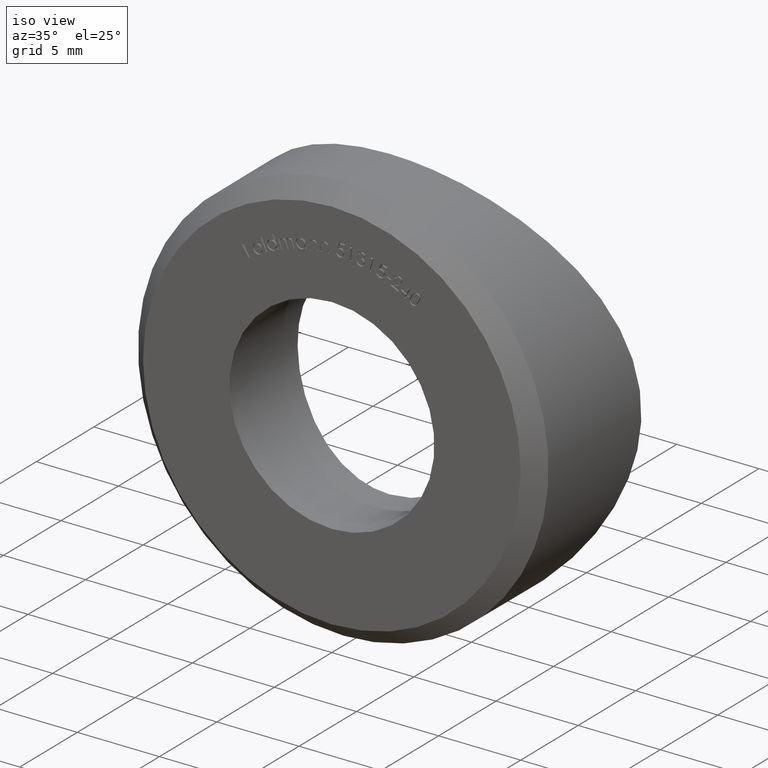
[diagram: clean part render]
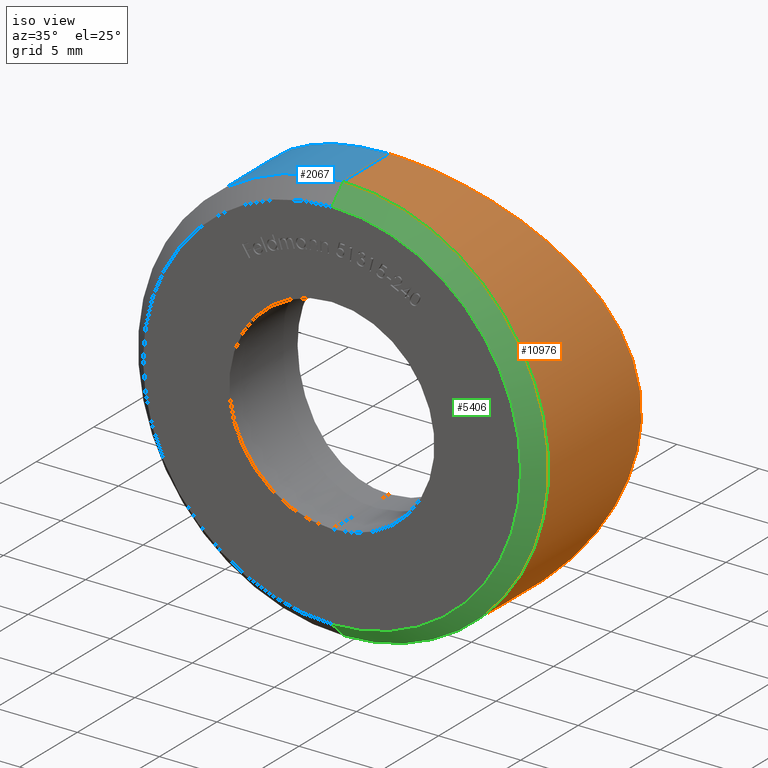
[diagram: same view with three faces highlighted in distinct colors, each labeled with its STEP entity id]
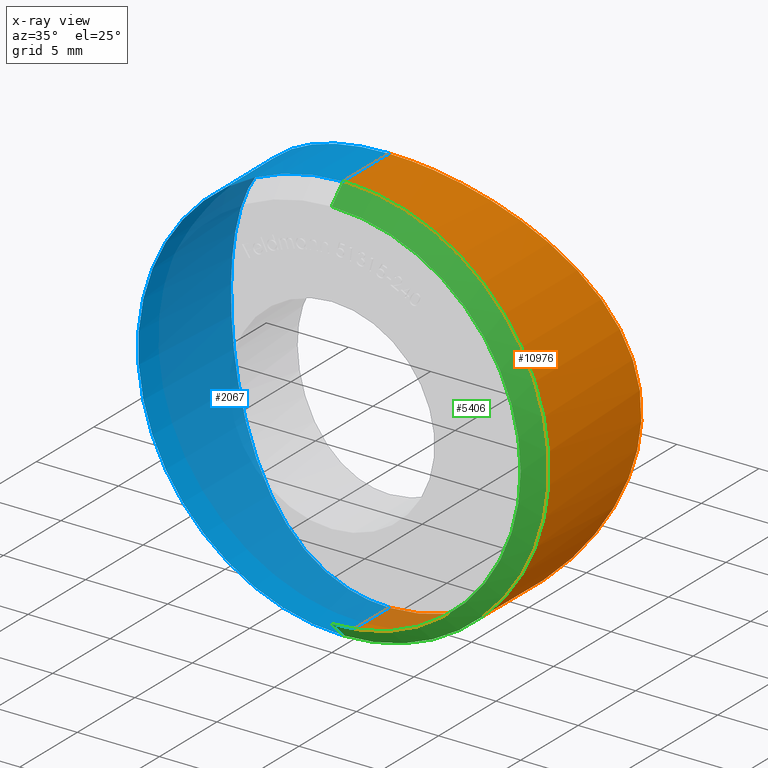
[diagram: x-ray of the same camera — body ghosted, the three highlighted faces saturated]
A machine part, iso view with three faces highlighted in distinct colors.
The next image is the same camera in x-ray (body ghosted, the three faces saturated) — at least one of them is partly hidden behind the body in this view.
Their STEP definitions:

[orange] entity #10976 — the highlighted cylindrical surface (partial cylindrical patch) has radius 12.5 mm, axis along (-0, -1, -0).
#263 = CARTESIAN_POINT ( 'NONE',  ( 11.67846631272060876, 8.505685214676271144, 4.475364066211851011 ) ) ;
#387 = CARTESIAN_POINT ( 'NONE',  ( 2.898409304906333528, 5.195071156495155051, -12.16641135109074767 ) ) ;
#430 = CARTESIAN_POINT ( 'NONE',  ( 0.8478629522269917063, 5.000000000000001776, -12.50000000000000711 ) ) ;
#507 = FACE_OUTER_BOUND ( 'NONE', #5410, .T. ) ;
#905 = CARTESIAN_POINT ( 'NONE',  ( 1.530887605100811247E-15, 4.999999999999999112, 12.50000000000000000 ) ) ;
#1086 = CARTESIAN_POINT ( 'NONE',  ( 0.000000000000000000, 5.000000000000000888, -12.50000000000000000 ) ) ;
#1108 = EDGE_CURVE ( 'NONE', #8449, #4481, #12206, .T. ) ;
#1183 = CARTESIAN_POINT ( 'NONE',  ( 7.646790368340567134, 6.424291565399593118, 9.896385243418201583 ) ) ;
#1224 = CARTESIAN_POINT ( 'NONE',  ( 0.000000000000000000, 5.000000000000000888, -12.50000000000000000 ) ) ;
#1259 = CARTESIAN_POINT ( 'NONE',  ( 12.06140105095338200, 8.764841407803597662, -3.308294788465092839 ) ) ;
#1302 = CARTESIAN_POINT ( 'NONE',  ( 10.82152247974873660, 7.962760348183352654, -6.307593803834299351 ) ) ;
#1344 = CARTESIAN_POINT ( 'NONE',  ( 10.59175742400297793, 7.833704618401160502, 6.650254937661418175 ) ) ;
#2123 = CARTESIAN_POINT ( 'NONE',  ( 8.278203474415134266, 6.680214651828880079, -9.374511966547128594 ) ) ;
#2168 = CARTESIAN_POINT ( 'NONE',  ( 11.20243298844896884, 8.197608064898485480, -5.604610241278012772 ) ) ;
#2208 = CARTESIAN_POINT ( 'NONE',  ( 5.619991862196275889, 5.743635217871106313, 11.19568889665280409 ) ) ;
#2257 = CARTESIAN_POINT ( 'NONE',  ( 7.661660525947143974, 6.430082681315079540, -9.884790607792227846 ) ) ;
#2299 = CARTESIAN_POINT ( 'NONE',  ( 12.47807166127773826, 9.061141850018755051, -0.8499554248995017103 ) ) ;
#2400 = VECTOR ( 'NONE', #5710, 1000.000000000000000 ) ;
#2640 = CARTESIAN_POINT ( 'NONE',  ( 0.000000000000000000, 10.00000000000000000, 0.000000000000000000 ) ) ;
#2770 = EDGE_CURVE ( 'NONE', #8945, #11309, #9629, .T. ) ;
#3080 = CARTESIAN_POINT ( 'NONE',  ( 4.482323642496877980, 5.475604546294179364, 11.67596738451938165 ) ) ;
#3123 = CARTESIAN_POINT ( 'NONE',  ( 0.4232115989385539789, 5.000000000000002665, 12.50000000000000355 ) ) ;
#3166 = CARTESIAN_POINT ( 'NONE',  ( 4.089555561271524198, 5.394311520608646049, 11.81933726220129088 ) ) ;
#3213 = CARTESIAN_POINT ( 'NONE',  ( 9.134377025091428237, 7.066292848370449242, -8.542337097716755423 ) ) ;
#3250 = CARTESIAN_POINT ( 'NONE',  ( 9.918820545002478895, 7.456427115187428178, 7.649304756334768918 ) ) ;
#3990 = AXIS2_PLACEMENT_3D ( 'NONE', #2640, #4511, #8266 ) ;
#4039 = CARTESIAN_POINT ( 'NONE',  ( 2.898727234404536279, 5.195144075315389465, 12.16628438379734511 ) ) ;
#4082 = CARTESIAN_POINT ( 'NONE',  ( 12.33057302590885840, 8.954499373850101307, -2.092615352685047281 ) ) ;
#4119 = CARTESIAN_POINT ( 'NONE',  ( 1.530887605100811247E-15, 4.999999999999999112, 12.50000000000000000 ) ) ;
#4169 = CARTESIAN_POINT ( 'NONE',  ( 12.41548790185622408, 9.014635816165455395, 1.672385210948660772 ) ) ;
#4211 = CARTESIAN_POINT ( 'NONE',  ( 8.267314170683990326, 6.675564965129482609, 9.384208023413554756 ) ) ;
#4452 = ORIENTED_EDGE ( 'NONE', *, *, #2770, .T. ) ;
#4481 = VERTEX_POINT ( 'NONE', #9284 ) ;
#4511 = DIRECTION ( 'NONE',  ( -0.000000000000000000, -1.000000000000000000, -0.000000000000000000 ) ) ;
#4935 = CARTESIAN_POINT ( 'NONE',  ( 1.677979781783525803, 5.050635169589542173, -12.41465869457535476 ) ) ;
#4979 = CARTESIAN_POINT ( 'NONE',  ( 7.338495045221091750, 6.307455905814879138, -10.12724766874147875 ) ) ;
#5063 = CARTESIAN_POINT ( 'NONE',  ( 12.16471043445112521, 8.837104416608278612, -2.905493109184786871 ) ) ;
#5104 = CARTESIAN_POINT ( 'NONE',  ( 12.39342331724486534, 8.999831699988156686, -1.681593020879284417 ) ) ;
#5410 = EDGE_LOOP ( 'NONE', ( #10770, #4452, #7070, #9958 ) ) ;
#5710 = DIRECTION ( 'NONE',  ( -0.000000000000000000, -1.000000000000000000, -0.000000000000000000 ) ) ;
#5867 = CARTESIAN_POINT ( 'NONE',  ( 12.50027753928342733, 9.077410781089795933, 0.8424138157455595133 ) ) ;
#5908 = CARTESIAN_POINT ( 'NONE',  ( 2.088079233357500009, 5.099134683348696129, 12.33130246170820321 ) ) ;
#5953 = CARTESIAN_POINT ( 'NONE',  ( 4.098051575769547483, 5.395919686597173026, -11.81651451152868759 ) ) ;
#6047 = CARTESIAN_POINT ( 'NONE',  ( 11.18756658493021661, 8.190860989748687260, 5.590369990027006075 ) ) ;
#6643 = B_SPLINE_CURVE_WITH_KNOTS ( 'NONE', 3,
 ( #1224, #430, #4935, #387, #8863, #5953, #6901, #6988, #10618, #4979, #2257, #2123, #8818, #3213, #9852, #9808, #11533, #1302, #2168, #6942, #10743, #1259, #5063, #4082, #5104, #2299, #11574, #5867, #4169, #8773, #8912, #7873, #263, #6815, #6047, #10656, #1344, #3250, #7917, #7829, #4211, #1183, #7794, #8733, #2208, #3080, #3166, #9683, #4039, #5908, #9765, #6855, #3123, #4119 ),
 .UNSPECIFIED., .F., .F.,
 ( 4, 2, 2, 2, 2, 2, 2, 2, 2, 2, 2, 2, 2, 2, 2, 2, 2, 2, 2, 2, 2, 2, 2, 2, 2, 2, 4 ),
 ( 0.000000000000000000, 0.002503861598448020327, 0.003755792397672031574, 0.005007723196896043255, 0.007511584795344068352, 0.008763515594568080033, 0.01001544639379209345, 0.01126737719301610513, 0.01251930799224011855, 0.01502316959068814017, 0.01627510038991215185, 0.01752703118913616701, 0.01877896198836018216, 0.02003089278758419384, 0.02253475438603222414, 0.02378668518525623929, 0.02503861598448025444, 0.02629054678370426959, 0.02754247758292828474, 0.03004633918137631851, 0.03129826998060033366, 0.03255020077982435228, 0.03505406237827238952, 0.03630599317749640814, 0.03755792397672042676, 0.03880985477594444538, 0.04006178557516847094 ),
 .UNSPECIFIED. ) ;
#6815 = CARTESIAN_POINT ( 'NONE',  ( 11.36279858893107253, 8.301336380420409000, 5.225157143079650623 ) ) ;
#6831 = DIRECTION ( 'NONE',  ( -0.000000000000000000, 1.000000000000000000, -0.000000000000000000 ) ) ;
#6855 = CARTESIAN_POINT ( 'NONE',  ( 0.8464704572562640195, 5.012814259327403654, 12.47830133919498330 ) ) ;
#6901 = CARTESIAN_POINT ( 'NONE',  ( 4.486775373596690208, 5.476607313948641753, -11.67418014699590678 ) ) ;
#6942 = CARTESIAN_POINT ( 'NONE',  ( 11.67467745796113299, 8.503190645938495607, -4.485080429257234158 ) ) ;
#6988 = CARTESIAN_POINT ( 'NONE',  ( 5.618270922419649871, 5.743322299652463769, -11.19623031528031376 ) ) ;
#7070 = ORIENTED_EDGE ( 'NONE', *, *, #8625, .T. ) ;
#7217 = AXIS2_PLACEMENT_3D ( 'NONE', #7807, #6831, #11592 ) ;
#7257 = CYLINDRICAL_SURFACE ( 'NONE', #3990, 12.50000000000000000 ) ;
#7578 = CARTESIAN_POINT ( 'NONE',  ( 1.530808498934191521E-15, 10.00000000000000000, 12.50000000000000000 ) ) ;
#7794 = CARTESIAN_POINT ( 'NONE',  ( 7.325591900332314665, 6.302773631798741505, 10.13639213078521983 ) ) ;
#7807 = CARTESIAN_POINT ( 'NONE',  ( 0.000000000000000000, 1.000000000000004441, 0.000000000000000000 ) ) ;
#7829 = CARTESIAN_POINT ( 'NONE',  ( 8.566145255417012550, 6.805214999901862072, 9.112131010558833566 ) ) ;
#7873 = CARTESIAN_POINT ( 'NONE',  ( 11.81890763554146773, 8.599564476673934976, 4.090787810808888203 ) ) ;
#7917 = CARTESIAN_POINT ( 'NONE',  ( 9.413153036285050845, 7.194246427378427455, 8.263271402867186310 ) ) ;
#8266 = DIRECTION ( 'NONE',  ( 0.000000000000000000, 0.000000000000000000, -1.000000000000000000 ) ) ;
#8449 = VERTEX_POINT ( 'NONE', #1086 ) ;
#8524 = CARTESIAN_POINT ( 'NONE',  ( 0.000000000000000000, 10.00000000000000000, -12.50000000000000000 ) ) ;
#8625 = EDGE_CURVE ( 'NONE', #11309, #4481, #12193, .T. ) ;
#8733 = CARTESIAN_POINT ( 'NONE',  ( 6.328661136673796150, 5.954415208056193620, 10.80930232226809729 ) ) ;
#8773 = CARTESIAN_POINT ( 'NONE',  ( 12.16735207086355963, 8.838956999169301554, 2.894537375365316745 ) ) ;
#8818 = CARTESIAN_POINT ( 'NONE',  ( 8.572518229679422674, 6.808055172246083586, -9.106058309134644091 ) ) ;
#8863 = CARTESIAN_POINT ( 'NONE',  ( 3.301065501466569518, 5.254672335835619101, -12.06345756712653738 ) ) ;
#8912 = CARTESIAN_POINT ( 'NONE',  ( 12.06350956403396957, 8.766307181016429695, 3.300433245648803915 ) ) ;
#8945 = VERTEX_POINT ( 'NONE', #905 ) ;
#9284 = CARTESIAN_POINT ( 'NONE',  ( 0.000000000000000000, 1.000000000000004441, -12.50000000000000000 ) ) ;
#9629 = LINE ( 'NONE', #7578, #2400 ) ;
#9683 = CARTESIAN_POINT ( 'NONE',  ( 3.298999597382791027, 5.254410023905433214, 12.06390482650020779 ) ) ;
#9765 = CARTESIAN_POINT ( 'NONE',  ( 1.677704399797129486, 5.062387556971594371, 12.39394305673800289 ) ) ;
#9808 = CARTESIAN_POINT ( 'NONE',  ( 9.910438095873704611, 7.456873604423454260, -7.628468530490055244 ) ) ;
#9828 = EDGE_CURVE ( 'NONE', #8449, #8945, #6643, .T. ) ;
#9852 = CARTESIAN_POINT ( 'NONE',  ( 9.401920349618588801, 7.196698600713324900, -8.247072760213146836 ) ) ;
#9958 = ORIENTED_EDGE ( 'NONE', *, *, #1108, .F. ) ;
#10415 = VECTOR ( 'NONE', #12208, 1000.000000000000000 ) ;
#10618 = CARTESIAN_POINT ( 'NONE',  ( 6.330101257356548494, 5.954578336252209780, -10.80918302013014021 ) ) ;
#10656 = CARTESIAN_POINT ( 'NONE',  ( 10.80240359501815028, 7.957225798877467504, 6.302535941030456001 ) ) ;
#10743 = CARTESIAN_POINT ( 'NONE',  ( 11.81542436538782681, 8.597219040368107912, -4.100970224852175328 ) ) ;
#10770 = ORIENTED_EDGE ( 'NONE', *, *, #9828, .T. ) ;
#10976 = ADVANCED_FACE ( 'NONE', ( #507 ), #7257, .T. ) ;
#11119 = CARTESIAN_POINT ( 'NONE',  ( 1.530808498934191521E-15, 1.000000000000004441, 12.50000000000000000 ) ) ;
#11309 = VERTEX_POINT ( 'NONE', #11119 ) ;
#11533 = CARTESIAN_POINT ( 'NONE',  ( 10.15162687379637063, 7.586831636188573924, -7.304433168198905868 ) ) ;
#11574 = CARTESIAN_POINT ( 'NONE',  ( 12.49986021772112288, 9.077106127552614367, -0.4273692039103346718 ) ) ;
#11592 = DIRECTION ( 'NONE',  ( 0.000000000000000000, 0.000000000000000000, 1.000000000000000000 ) ) ;
#12193 = CIRCLE ( 'NONE', #7217, 12.50000000000000000 ) ;
#12206 = LINE ( 'NONE', #8524, #10415 ) ;
#12208 = DIRECTION ( 'NONE',  ( -0.000000000000000000, -1.000000000000000000, -0.000000000000000000 ) ) ;

[blue] entity #2067 — the highlighted cylindrical surface (partial cylindrical patch) has radius 12.5 mm, axis along (-0, -1, -0).
#381 = CARTESIAN_POINT ( 'NONE',  ( -4.098881313406535831, 5.396098370568660485, 11.81619865197646924 ) ) ;
#413 = FACE_OUTER_BOUND ( 'NONE', #4597, .T. ) ;
#504 = CARTESIAN_POINT ( 'NONE',  ( -11.67959797431099211, 8.506432875218044032, -4.472416982486282500 ) ) ;
#584 = CARTESIAN_POINT ( 'NONE',  ( -12.49995315672591545, 9.077173974982683191, 0.4216211905541366600 ) ) ;
#623 = CARTESIAN_POINT ( 'NONE',  ( -2.097176843648299371, 5.100038927804917854, -12.32975636754796334 ) ) ;
#661 = CARTESIAN_POINT ( 'NONE',  ( -12.50009345433601027, 9.077276395202881432, -0.8390691434749725230 ) ) ;
#905 = CARTESIAN_POINT ( 'NONE',  ( 1.530887605100811247E-15, 4.999999999999999112, 12.50000000000000000 ) ) ;
#1086 = CARTESIAN_POINT ( 'NONE',  ( 0.000000000000000000, 5.000000000000000888, -12.50000000000000000 ) ) ;
#1100 = ORIENTED_EDGE ( 'NONE', *, *, #10418, .T. ) ;
#1105 = DIRECTION ( 'NONE',  ( 0.000000000000000000, 0.000000000000000000, -1.000000000000000000 ) ) ;
#1108 = EDGE_CURVE ( 'NONE', #8449, #4481, #12206, .T. ) ;
#1417 = CARTESIAN_POINT ( 'NONE',  ( -5.241369224485460165, 5.654411349695343425, -11.35557177507844173 ) ) ;
#1458 = CARTESIAN_POINT ( 'NONE',  ( -12.47830938601204664, 9.061314401198469426, 0.8472993663525842933 ) ) ;
#1537 = CARTESIAN_POINT ( 'NONE',  ( -12.16479829823128256, 8.837167060495486837, 2.905009959273183728 ) ) ;
#1555 = CARTESIAN_POINT ( 'NONE',  ( 0.000000000000000000, 1.000000000000004441, 0.000000000000000000 ) ) ;
#1577 = CARTESIAN_POINT ( 'NONE',  ( -7.650698286434820083, 6.425834821769853100, -9.893275124096266637 ) ) ;
#1798 = ORIENTED_EDGE ( 'NONE', *, *, #2770, .F. ) ;
#1966 = DIRECTION ( 'NONE',  ( -0.000000000000000000, -1.000000000000000000, -0.000000000000000000 ) ) ;
#2067 = ADVANCED_FACE ( 'NONE', ( #413 ), #5986, .T. ) ;
#2369 = CARTESIAN_POINT ( 'NONE',  ( -3.312780628144899264, 5.244534928651235717, -12.08137639908154881 ) ) ;
#2400 = VECTOR ( 'NONE', #5710, 1000.000000000000000 ) ;
#2455 = CARTESIAN_POINT ( 'NONE',  ( -8.290221674486215164, 6.678324192312866003, 9.389231942908736528 ) ) ;
#2539 = CARTESIAN_POINT ( 'NONE',  ( -12.39338106954870966, 8.999800732184667140, 1.682327855743181999 ) ) ;
#2637 = DIRECTION ( 'NONE',  ( -0.000000000000000000, 1.000000000000000000, -0.000000000000000000 ) ) ;
#2770 = EDGE_CURVE ( 'NONE', #8945, #11309, #9629, .T. ) ;
#3368 = CARTESIAN_POINT ( 'NONE',  ( -11.20628238189515358, 8.199984973895061202, -5.597439164856592875 ) ) ;
#3405 = CARTESIAN_POINT ( 'NONE',  ( -1.685780814151296880, 5.062984079818456884, -12.39292663872471145 ) ) ;
#4248 = CARTESIAN_POINT ( 'NONE',  ( -5.611235149701369274, 5.752707167948493350, -11.17713322661831121 ) ) ;
#4282 = CARTESIAN_POINT ( 'NONE',  ( -11.81787530502322525, 8.598872470283549063, 4.093690057730610121 ) ) ;
#4327 = CARTESIAN_POINT ( 'NONE',  ( -0.4231367302801713470, 5.000000000000002665, -12.50000000000000533 ) ) ;
#4362 = CARTESIAN_POINT ( 'NONE',  ( -10.81625542121545003, 7.959619982452108999, -6.316626266090062281 ) ) ;
#4410 = CARTESIAN_POINT ( 'NONE',  ( -8.267711844205683391, 6.675765479098355826, -9.383763520693587878 ) ) ;
#4481 = VERTEX_POINT ( 'NONE', #9284 ) ;
#4597 = EDGE_LOOP ( 'NONE', ( #1798, #1100, #5421, #6647 ) ) ;
#4865 = CARTESIAN_POINT ( 'NONE',  ( 0.000000000000000000, 10.00000000000000000, 0.000000000000000000 ) ) ;
#4924 = AXIS2_PLACEMENT_3D ( 'NONE', #4865, #1966, #1105 ) ;
#5138 = CARTESIAN_POINT ( 'NONE',  ( -1.674497918577361633, 5.050293355708632248, 12.41524292670124829 ) ) ;
#5219 = CARTESIAN_POINT ( 'NONE',  ( -7.330709698445557088, 6.304667547769729374, -10.13267299674067878 ) ) ;
#5263 = CARTESIAN_POINT ( 'NONE',  ( -9.416435969110027671, 7.195790228458313287, -8.259851447667609037 ) ) ;
#5339 = CARTESIAN_POINT ( 'NONE',  ( -11.20114602738160947, 8.196771547062233765, 5.607725193473508618 ) ) ;
#5421 = ORIENTED_EDGE ( 'NONE', *, *, #1108, .T. ) ;
#5710 = DIRECTION ( 'NONE',  ( -0.000000000000000000, -1.000000000000000000, -0.000000000000000000 ) ) ;
#5986 = CYLINDRICAL_SURFACE ( 'NONE', #4924, 12.50000000000000000 ) ;
#5995 = CARTESIAN_POINT ( 'NONE',  ( -3.303448607716780394, 5.255063181651196125, 12.06277770252514792 ) ) ;
#6081 = CARTESIAN_POINT ( 'NONE',  ( -6.669829700027646524, 6.073409024471667195, 10.57957404227690290 ) ) ;
#6119 = CARTESIAN_POINT ( 'NONE',  ( -9.415757118126723668, 7.195602623471481607, 8.260082916188229873 ) ) ;
#6157 = CARTESIAN_POINT ( 'NONE',  ( -10.81957638452302817, 7.961656043812026518, 6.310568793616725181 ) ) ;
#6190 = CARTESIAN_POINT ( 'NONE',  ( -6.323500538602515597, 5.961643223739661046, -10.79016255712178562 ) ) ;
#6267 = CARTESIAN_POINT ( 'NONE',  ( -4.098555857027928795, 5.385233673508000862, -11.83789198430986112 ) ) ;
#6647 = ORIENTED_EDGE ( 'NONE', *, *, #7839, .T. ) ;
#6894 = CARTESIAN_POINT ( 'NONE',  ( -0.8448364053230131843, 5.000000000000000888, 12.50000000000000178 ) ) ;
#6933 = CARTESIAN_POINT ( 'NONE',  ( -4.485822721674360025, 5.476406506794580409, 11.67453503908580181 ) ) ;
#7067 = CARTESIAN_POINT ( 'NONE',  ( -6.667109215675110612, 6.072575605062860760, -10.58111626663375660 ) ) ;
#7112 = CARTESIAN_POINT ( 'NONE',  ( -12.33035839858935745, 8.954347009053835293, 2.093719719175408667 ) ) ;
#7151 = CARTESIAN_POINT ( 'NONE',  ( -9.921906006915603982, 7.458105066150193529, -7.645059183051721163 ) ) ;
#7233 = CARTESIAN_POINT ( 'NONE',  ( -12.06225762353779452, 8.765442131621906441, 3.304907871218893067 ) ) ;
#7578 = CARTESIAN_POINT ( 'NONE',  ( 1.530808498934191521E-15, 10.00000000000000000, 12.50000000000000000 ) ) ;
#7839 = EDGE_CURVE ( 'NONE', #4481, #11309, #11270, .T. ) ;
#7864 = CARTESIAN_POINT ( 'NONE',  ( -2.897469364862631291, 5.194924901719391030, 12.16666434696724508 ) ) ;
#8043 = CARTESIAN_POINT ( 'NONE',  ( -7.676073249284795175, 6.425696736269763676, 9.898684763400376951 ) ) ;
#8081 = CARTESIAN_POINT ( 'NONE',  ( -12.06325296363167432, 8.766134770798455378, -3.301169348712005291 ) ) ;
#8166 = CARTESIAN_POINT ( 'NONE',  ( -11.81965698890197025, 8.600072796763280181, -4.088459342850902623 ) ) ;
#8204 = CARTESIAN_POINT ( 'NONE',  ( -0.8499052129647439724, 5.012905812916583770, -12.47814684779549488 ) ) ;
#8449 = VERTEX_POINT ( 'NONE', #1086 ) ;
#8524 = CARTESIAN_POINT ( 'NONE',  ( 0.000000000000000000, 10.00000000000000000, -12.50000000000000000 ) ) ;
#8904 = CARTESIAN_POINT ( 'NONE',  ( -5.606428654785879040, 5.751369460099853725, 11.17958506887460679 ) ) ;
#8945 = VERTEX_POINT ( 'NONE', #905 ) ;
#9066 = CARTESIAN_POINT ( 'NONE',  ( -12.41629655234152629, 9.015211269967004171, -1.668058751979845544 ) ) ;
#9088 = DIRECTION ( 'NONE',  ( 0.000000000000000000, 0.000000000000000000, 1.000000000000000000 ) ) ;
#9147 = CARTESIAN_POINT ( 'NONE',  ( 0.000000000000000000, 5.000000000000000888, -12.50000000000000000 ) ) ;
#9284 = CARTESIAN_POINT ( 'NONE',  ( 0.000000000000000000, 1.000000000000004441, -12.50000000000000000 ) ) ;
#9629 = LINE ( 'NONE', #7578, #2400 ) ;
#9881 = CARTESIAN_POINT ( 'NONE',  ( -11.67554375833281988, 8.503753089677339005, 4.482994701125202042 ) ) ;
#9926 = CARTESIAN_POINT ( 'NONE',  ( -9.929502945474961706, 7.462193440518420928, 7.634885912395921181 ) ) ;
#9965 = CARTESIAN_POINT ( 'NONE',  ( -12.16725302635286177, 8.838885412059610758, -2.895196679267826312 ) ) ;
#10415 = VECTOR ( 'NONE', #12208, 1000.000000000000000 ) ;
#10418 = EDGE_CURVE ( 'NONE', #8945, #8449, #11404, .T. ) ;
#10866 = CARTESIAN_POINT ( 'NONE',  ( -8.566015448369475038, 6.805137453733451025, -9.112325850888291612 ) ) ;
#11119 = CARTESIAN_POINT ( 'NONE',  ( 1.530808498934191521E-15, 1.000000000000004441, 12.50000000000000000 ) ) ;
#11270 = CIRCLE ( 'NONE', #11875, 12.50000000000000000 ) ;
#11309 = VERTEX_POINT ( 'NONE', #11119 ) ;
#11404 = B_SPLINE_CURVE_WITH_KNOTS ( 'NONE', 3,
 ( #11653, #6894, #5138, #7864, #5995, #381, #6933, #11699, #8904, #11743, #6081, #8043, #2455, #6119, #9926, #6157, #5339, #9881, #4282, #7233, #1537, #7112, #2539, #1458, #584, #661, #9066, #9965, #8081, #8166, #504, #3368, #4362, #7151, #5263, #10866, #4410, #1577, #5219, #7067, #6190, #4248, #1417, #6267, #2369, #623, #3405, #8204, #4327, #9147 ),
 .UNSPECIFIED., .F., .F.,
 ( 4, 2, 2, 2, 2, 2, 2, 2, 2, 2, 2, 2, 2, 2, 2, 2, 2, 2, 2, 2, 2, 2, 2, 2, 4 ),
 ( 0.04006178557516847094, 0.04256095317544767581, 0.04381053697558728172, 0.04506012077572688762, 0.04630970457586649353, 0.04755928837600609249, 0.05005845597628530430, 0.05255762357656450223, 0.05505679117684371404, 0.05630637497698331301, 0.05755595877712291197, 0.05880554257726251788, 0.06005512637740212378, 0.06255429397768132171, 0.06380387777782092762, 0.06505346157796051965, 0.06755262917823973146, 0.07005179677851892939, 0.07130138057865853529, 0.07255096437879812732, 0.07380054817893773322, 0.07505013197907733913, 0.07754929957935655094, 0.07879888337949614296, 0.08004846717963574887 ),
 .UNSPECIFIED. ) ;
#11653 = CARTESIAN_POINT ( 'NONE',  ( 1.530887605100811247E-15, 4.999999999999999112, 12.50000000000000000 ) ) ;
#11699 = CARTESIAN_POINT ( 'NONE',  ( -5.239598533576115713, 5.654038353757618651, 11.35623093619001267 ) ) ;
#11743 = CARTESIAN_POINT ( 'NONE',  ( -6.320770261694771186, 5.960770851699510153, 10.79180373581188235 ) ) ;
#11875 = AXIS2_PLACEMENT_3D ( 'NONE', #1555, #2637, #9088 ) ;
#12206 = LINE ( 'NONE', #8524, #10415 ) ;
#12208 = DIRECTION ( 'NONE',  ( -0.000000000000000000, -1.000000000000000000, -0.000000000000000000 ) ) ;

[green] entity #5406 — the highlighted conical surface has half-angle 45 deg.
#357 = DIRECTION ( 'NONE',  ( 0.000000000000000000, 0.000000000000000000, 1.000000000000000000 ) ) ;
#1442 = EDGE_CURVE ( 'NONE', #2080, #4481, #5252, .T. ) ;
#2080 = VERTEX_POINT ( 'NONE', #5758 ) ;
#2157 = AXIS2_PLACEMENT_3D ( 'NONE', #3843, #4002, #6695 ) ;
#2301 = CARTESIAN_POINT ( 'NONE',  ( 0.000000000000000000, 0.000000000000000000, 11.49999999999999289 ) ) ;
#2391 = CARTESIAN_POINT ( 'NONE',  ( 1.530808498934191521E-15, 1.000000000000004441, -12.50000000000000000 ) ) ;
#2443 = VECTOR ( 'NONE', #3343, 1000.000000000000000 ) ;
#2723 = AXIS2_PLACEMENT_3D ( 'NONE', #11584, #10799, #357 ) ;
#3343 = DIRECTION ( 'NONE',  ( 8.659560562354948882E-17, 0.7071067811865463515, -0.7071067811865487940 ) ) ;
#3400 = EDGE_CURVE ( 'NONE', #2080, #11169, #9192, .T. ) ;
#3748 = LINE ( 'NONE', #6912, #8469 ) ;
#3843 = CARTESIAN_POINT ( 'NONE',  ( 0.000000000000000000, 0.000000000000000000, 0.000000000000000000 ) ) ;
#4002 = DIRECTION ( 'NONE',  ( -0.000000000000000000, -1.000000000000000000, -0.000000000000000000 ) ) ;
#4481 = VERTEX_POINT ( 'NONE', #9284 ) ;
#4801 = ORIENTED_EDGE ( 'NONE', *, *, #8625, .F. ) ;
#5252 = LINE ( 'NONE', #2391, #2443 ) ;
#5406 = ADVANCED_FACE ( 'NONE', ( #11364 ), #10767, .T. ) ;
#5758 = CARTESIAN_POINT ( 'NONE',  ( 1.469576158976823553E-15, 0.000000000000000000, -11.49999999999999289 ) ) ;
#6695 = DIRECTION ( 'NONE',  ( 0.000000000000000000, 0.000000000000000000, 1.000000000000000000 ) ) ;
#6831 = DIRECTION ( 'NONE',  ( -0.000000000000000000, 1.000000000000000000, -0.000000000000000000 ) ) ;
#6912 = CARTESIAN_POINT ( 'NONE',  ( 0.000000000000000000, 1.000000000000004441, 12.50000000000000000 ) ) ;
#7217 = AXIS2_PLACEMENT_3D ( 'NONE', #7807, #6831, #11592 ) ;
#7677 = EDGE_CURVE ( 'NONE', #11169, #11309, #3748, .T. ) ;
#7807 = CARTESIAN_POINT ( 'NONE',  ( 0.000000000000000000, 1.000000000000004441, 0.000000000000000000 ) ) ;
#7976 = ORIENTED_EDGE ( 'NONE', *, *, #3400, .F. ) ;
#8469 = VECTOR ( 'NONE', #11588, 1000.000000000000000 ) ;
#8625 = EDGE_CURVE ( 'NONE', #11309, #4481, #12193, .T. ) ;
#8738 = ORIENTED_EDGE ( 'NONE', *, *, #1442, .T. ) ;
#9192 = CIRCLE ( 'NONE', #2157, 11.49999999999999289 ) ;
#9284 = CARTESIAN_POINT ( 'NONE',  ( 0.000000000000000000, 1.000000000000004441, -12.50000000000000000 ) ) ;
#10767 = CONICAL_SURFACE ( 'NONE', #2723, 12.50000000000000000, 0.7853981633974500554 ) ;
#10799 = DIRECTION ( 'NONE',  ( -0.000000000000000000, 1.000000000000000000, -0.000000000000000000 ) ) ;
#11119 = CARTESIAN_POINT ( 'NONE',  ( 1.530808498934191521E-15, 1.000000000000004441, 12.50000000000000000 ) ) ;
#11169 = VERTEX_POINT ( 'NONE', #2301 ) ;
#11309 = VERTEX_POINT ( 'NONE', #11119 ) ;
#11364 = FACE_OUTER_BOUND ( 'NONE', #11438, .T. ) ;
#11438 = EDGE_LOOP ( 'NONE', ( #7976, #8738, #4801, #12098 ) ) ;
#11584 = CARTESIAN_POINT ( 'NONE',  ( 0.000000000000000000, 1.000000000000004441, 0.000000000000000000 ) ) ;
#11588 = DIRECTION ( 'NONE',  ( 0.000000000000000000, 0.7071067811865463515, 0.7071067811865487940 ) ) ;
#11592 = DIRECTION ( 'NONE',  ( 0.000000000000000000, 0.000000000000000000, 1.000000000000000000 ) ) ;
#12098 = ORIENTED_EDGE ( 'NONE', *, *, #7677, .F. ) ;
#12193 = CIRCLE ( 'NONE', #7217, 12.50000000000000000 ) ;